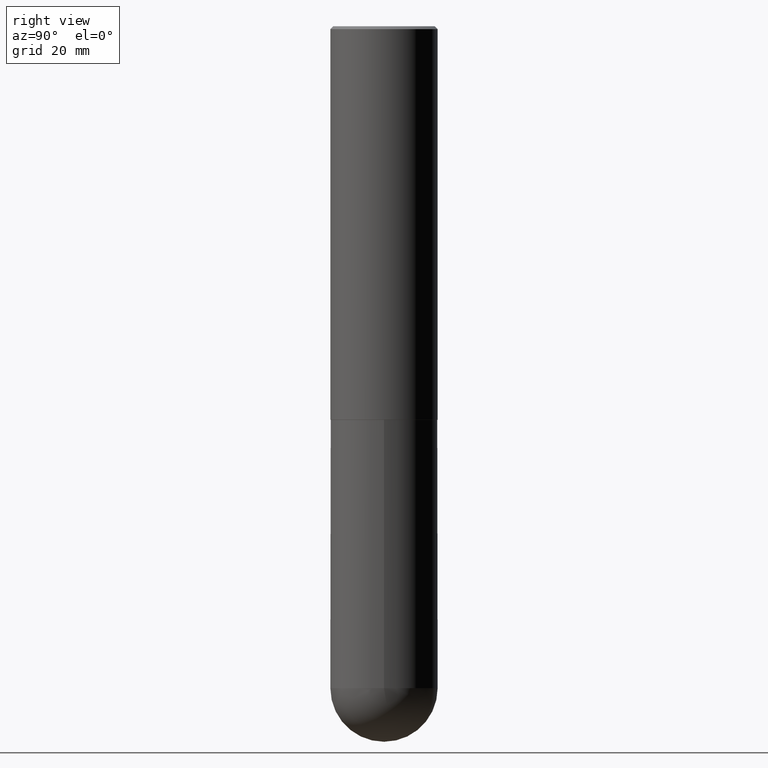
[diagram: clean part render]
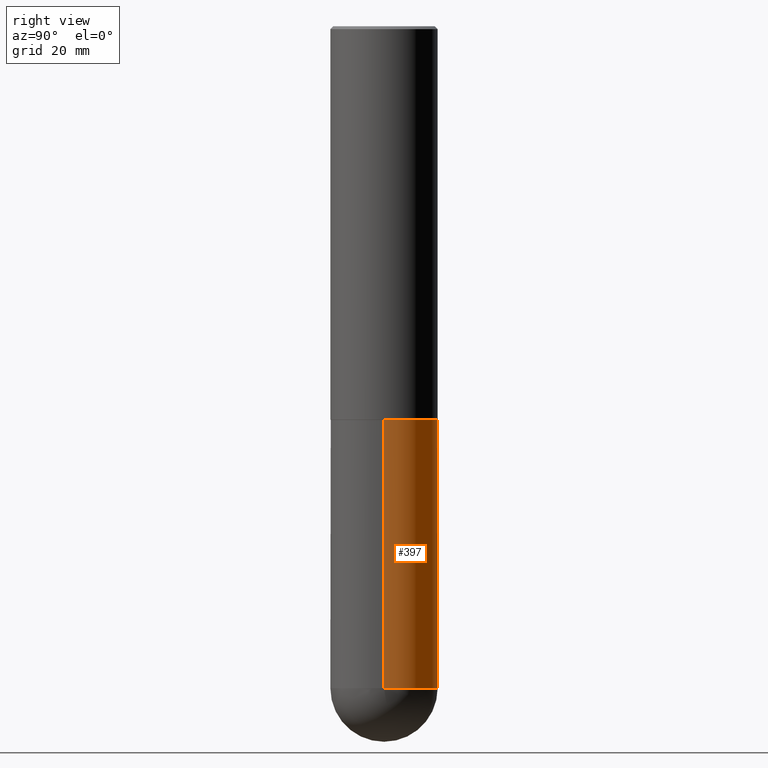
[diagram: same view with one face highlighted and labeled with its STEP entity id]
A machine part, right view. The second image highlights one B-rep face of the part: STEP entity #397.
In plain terms, the highlighted cylindrical surface (partial cylindrical patch) has radius 9.525 mm, axis along (-0, 0, 1).
Its self-contained STEP definition (entity closure, byte-faithful):
#5 = CARTESIAN_POINT ( 'NONE',  ( 6.725039217009124520E-29, -9.601573681818649859E-15, -2.750000000000000000 ) ) ;
#32 = DIRECTION ( 'NONE',  ( -2.445468806185136877E-29, 3.491481338843145188E-15, 1.000000000000000000 ) ) ;
#33 = VECTOR ( 'NONE', #32, 39.37007874015748143 ) ;
#45 = DIRECTION ( 'NONE',  ( 1.000000000000000000, -6.982962677686270655E-15, 0.000000000000000000 ) ) ;
#48 = DIRECTION ( 'NONE',  ( -2.445468806185136877E-29, 3.491481338843145188E-15, 1.000000000000000000 ) ) ;
#51 = VERTEX_POINT ( 'NONE', #332 ) ;
#56 = AXIS2_PLACEMENT_3D ( 'NONE', #297, #129, #135 ) ;
#68 = VECTOR ( 'NONE', #48, 39.37007874015748143 ) ;
#74 = FACE_OUTER_BOUND ( 'NONE', #92, .T. ) ;
#80 = CARTESIAN_POINT ( 'NONE',  ( -0.3750000000000000555, -1.021030217788372194E-14, -2.750000000000000000 ) ) ;
#85 = AXIS2_PLACEMENT_3D ( 'NONE', #274, #228, #45 ) ;
#92 = EDGE_LOOP ( 'NONE', ( #280, #132, #209, #390, #267 ) ) ;
#97 = EDGE_CURVE ( 'NONE', #227, #395, #340, .T. ) ;
#127 = DIRECTION ( 'NONE',  ( -2.445468806185136597E-29, 3.491481338843145583E-15, 1.000000000000000000 ) ) ;
#129 = DIRECTION ( 'NONE',  ( -2.445468806185136597E-29, 3.491481338843145583E-15, 1.000000000000000000 ) ) ;
#132 = ORIENTED_EDGE ( 'NONE', *, *, #257, .T. ) ;
#135 = DIRECTION ( 'NONE',  ( 1.000000000000000000, -6.982962677686265922E-15, 4.876176775795935793E-29 ) ) ;
#164 = AXIS2_PLACEMENT_3D ( 'NONE', #5, #127, #219 ) ;
#166 = AXIS2_PLACEMENT_3D ( 'NONE', #359, #326, #401 ) ;
#199 = CYLINDRICAL_SURFACE ( 'NONE', #56, 0.3750000000000001110 ) ;
#204 = VERTEX_POINT ( 'NONE', #284 ) ;
#209 = ORIENTED_EDGE ( 'NONE', *, *, #263, .F. ) ;
#212 = CARTESIAN_POINT ( 'NONE',  ( 2.618611004132463218E-15, 0.3749999999999838463, -4.625000000000000888 ) ) ;
#219 = DIRECTION ( 'NONE',  ( 1.000000000000000000, -6.982962677686266711E-15, 0.000000000000000000 ) ) ;
#221 = CARTESIAN_POINT ( 'NONE',  ( -0.3750000000000001110, -1.021030217788372352E-14, -4.625000000000000000 ) ) ;
#227 = VERTEX_POINT ( 'NONE', #212 ) ;
#228 = DIRECTION ( 'NONE',  ( -2.445468806185136597E-29, 3.491481338843145583E-15, 1.000000000000000000 ) ) ;
#257 = EDGE_CURVE ( 'NONE', #395, #346, #311, .T. ) ;
#263 = EDGE_CURVE ( 'NONE', #51, #346, #301, .T. ) ;
#267 = ORIENTED_EDGE ( 'NONE', *, *, #405, .T. ) ;
#274 = CARTESIAN_POINT ( 'NONE',  ( 1.131029322860625676E-28, -1.614810119214955014E-14, -4.625000000000000000 ) ) ;
#279 = LINE ( 'NONE', #404, #68 ) ;
#280 = ORIENTED_EDGE ( 'NONE', *, *, #97, .T. ) ;
#282 = CIRCLE ( 'NONE', #166, 0.3750000000000001110 ) ;
#284 = CARTESIAN_POINT ( 'NONE',  ( 0.3750000000000001110, -1.549344844111645238E-14, -4.625000000000000000 ) ) ;
#297 = CARTESIAN_POINT ( 'NONE',  ( 0.000000000000000000, 0.000000000000000000, 0.000000000000000000 ) ) ;
#301 = CIRCLE ( 'NONE', #164, 0.3750000000000000555 ) ;
#311 = LINE ( 'NONE', #318, #33 ) ;
#318 = CARTESIAN_POINT ( 'NONE',  ( -0.3750000000000001110, 2.664535259100376486E-15, -1.844600658845590159E-29 ) ) ;
#326 = DIRECTION ( 'NONE',  ( -2.445468806185136597E-29, 3.491481338843145583E-15, 1.000000000000000000 ) ) ;
#332 = CARTESIAN_POINT ( 'NONE',  ( 0.3750000000000000555, -1.222018468595100145E-14, -2.750000000000000000 ) ) ;
#340 = CIRCLE ( 'NONE', #85, 0.3750000000000001110 ) ;
#346 = VERTEX_POINT ( 'NONE', #80 ) ;
#359 = CARTESIAN_POINT ( 'NONE',  ( 1.131029322860625676E-28, -1.614810119214955014E-14, -4.625000000000000000 ) ) ;
#390 = ORIENTED_EDGE ( 'NONE', *, *, #410, .F. ) ;
#395 = VERTEX_POINT ( 'NONE', #221 ) ;
#397 = ADVANCED_FACE ( 'NONE', ( #74 ), #199, .T. ) ;
#401 = DIRECTION ( 'NONE',  ( 1.000000000000000000, -6.982962677686270655E-15, 0.000000000000000000 ) ) ;
#404 = CARTESIAN_POINT ( 'NONE',  ( 0.3750000000000001110, -2.618611004132350411E-15, 1.828566290923476483E-29 ) ) ;
#405 = EDGE_CURVE ( 'NONE', #204, #227, #282, .T. ) ;
#410 = EDGE_CURVE ( 'NONE', #204, #51, #279, .T. ) ;